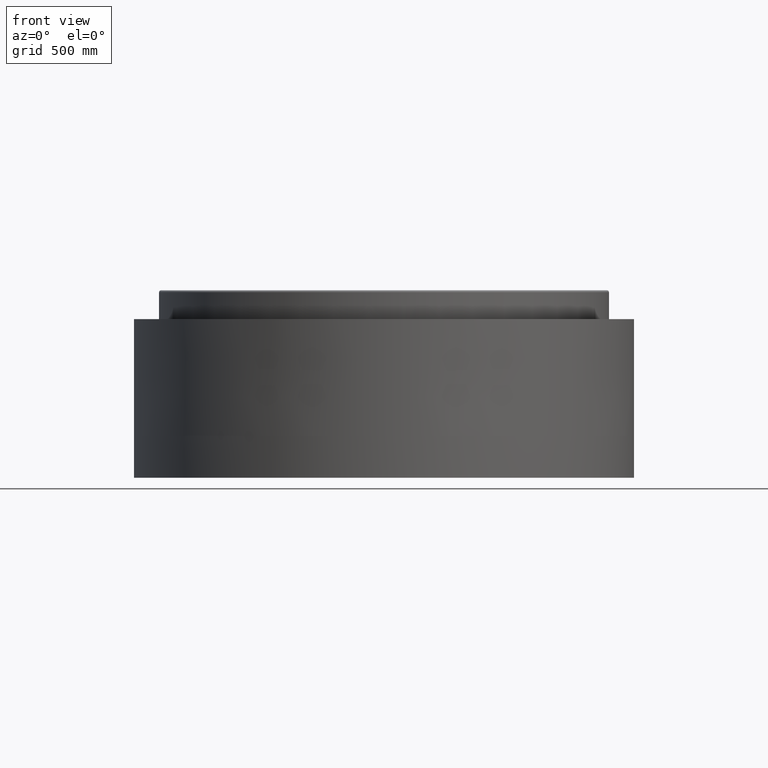
[diagram: clean part render]
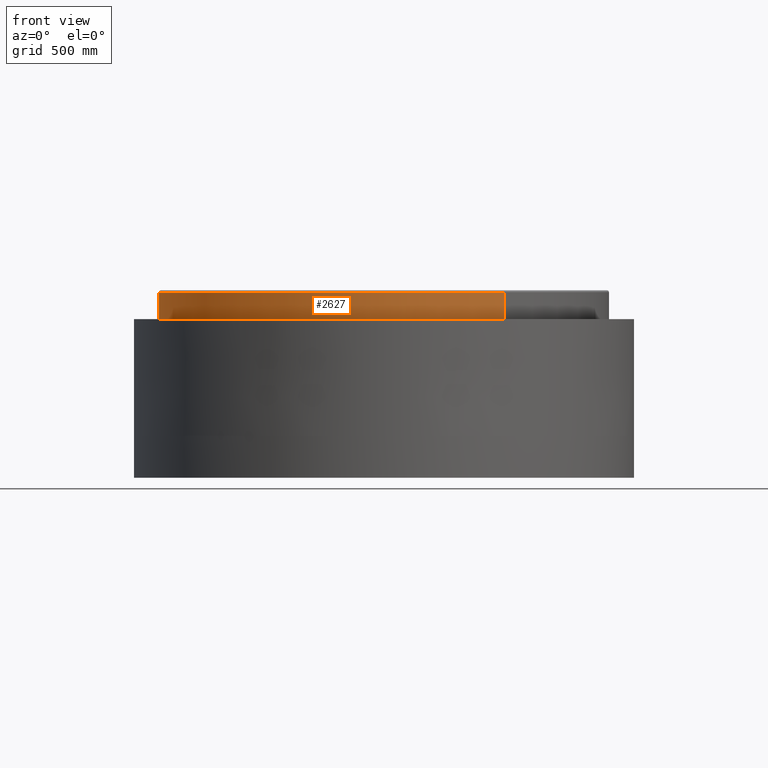
[diagram: same view with one face highlighted and labeled with its STEP entity id]
A machine part, front view. The second image highlights one B-rep face of the part: STEP entity #2627.
In plain terms, the highlighted cylindrical surface (partial cylindrical patch) has radius 1076 mm, axis along (-0, 0, -1).
Its self-contained STEP definition (entity closure, byte-faithful):
#609 = AXIS2_PLACEMENT_3D ( 'NONE', #11623, #6241, #1085 ) ;
#1085 = DIRECTION ( 'NONE',  ( -0.5325254243731409876, 0.8464140076795787504, 0.0000000000000000000 ) ) ;
#1161 = CARTESIAN_POINT ( 'NONE',  ( 572.9973566254999469, -910.7414722632267967, 557.0000000000000000 ) ) ;
#1335 = DIRECTION ( 'NONE',  ( -7.005467589146161716E-18, 3.518248062309025038E-17, -1.000000000000000000 ) ) ;
#1511 = FACE_OUTER_BOUND ( 'NONE', #13046, .T. ) ;
#2017 = CIRCLE ( 'NONE', #21024, 1076.000000000000227 ) ;
#2627 = ADVANCED_FACE ( 'NONE', ( #1511 ), #8350, .T. ) ;
#3336 = EDGE_CURVE ( 'NONE', #19158, #12610, #3903, .T. ) ;
#3580 = ORIENTED_EDGE ( 'NONE', *, *, #9729, .T. ) ;
#3728 = CARTESIAN_POINT ( 'NONE',  ( -572.9973566254998332, 910.7414722632269104, 557.0000000000000000 ) ) ;
#3787 = ORIENTED_EDGE ( 'NONE', *, *, #3336, .F. ) ;
#3903 = LINE ( 'NONE', #18054, #7356 ) ;
#4362 = CIRCLE ( 'NONE', #7930, 1076.000000000000227 ) ;
#5058 = CARTESIAN_POINT ( 'NONE',  ( 8.966998514107094886E-16, -4.503357519755555994E-15, 685.0000000000000000 ) ) ;
#5365 = DIRECTION ( 'NONE',  ( -7.005467589146161716E-18, 3.518248062309025038E-17, -1.000000000000000000 ) ) ;
#5583 = VECTOR ( 'NONE', #1335, 1000.000000000000000 ) ;
#6241 = DIRECTION ( 'NONE',  ( -7.005467589146161716E-18, 3.518248062309025038E-17, -1.000000000000000000 ) ) ;
#7356 = VECTOR ( 'NONE', #9402, 1000.000000000000000 ) ;
#7930 = AXIS2_PLACEMENT_3D ( 'NONE', #18965, #5365, #8616 ) ;
#8350 = CYLINDRICAL_SURFACE ( 'NONE', #609, 1076.000000000000227 ) ;
#8498 = EDGE_CURVE ( 'NONE', #19158, #16138, #2017, .T. ) ;
#8616 = DIRECTION ( 'NONE',  ( -0.5325254243731409876, 0.8464140076795787504, 0.0000000000000000000 ) ) ;
#9402 = DIRECTION ( 'NONE',  ( -7.005467589146161716E-18, 3.518248062309025038E-17, -1.000000000000000000 ) ) ;
#9507 = ORIENTED_EDGE ( 'NONE', *, *, #21439, .F. ) ;
#9729 = EDGE_CURVE ( 'NONE', #16138, #12415, #16723, .T. ) ;
#11623 = CARTESIAN_POINT ( 'NONE',  ( 4.053384292576740637E-31, -2.250246836384645568E-30, 557.0000000000000000 ) ) ;
#11801 = DIRECTION ( 'NONE',  ( -0.5325254243731409876, 0.8464140076795787504, 0.0000000000000000000 ) ) ;
#12415 = VERTEX_POINT ( 'NONE', #3728 ) ;
#12610 = VERTEX_POINT ( 'NONE', #1161 ) ;
#13046 = EDGE_LOOP ( 'NONE', ( #3787, #20000, #3580, #9507 ) ) ;
#13137 = CARTESIAN_POINT ( 'NONE',  ( -572.9973566254998332, 910.7414722632269104, 557.0000000000000000 ) ) ;
#14645 = CARTESIAN_POINT ( 'NONE',  ( -572.9973566254998332, 910.7414722632269104, 685.0000000000000000 ) ) ;
#16138 = VERTEX_POINT ( 'NONE', #14645 ) ;
#16723 = LINE ( 'NONE', #13137, #5583 ) ;
#17092 = DIRECTION ( 'NONE',  ( -7.005467589146161716E-18, 3.518248062309025038E-17, -1.000000000000000000 ) ) ;
#18054 = CARTESIAN_POINT ( 'NONE',  ( 572.9973566254999469, -910.7414722632267967, 557.0000000000000000 ) ) ;
#18569 = CARTESIAN_POINT ( 'NONE',  ( 572.9973566254999469, -910.7414722632267967, 685.0000000000000000 ) ) ;
#18965 = CARTESIAN_POINT ( 'NONE',  ( 4.053384292576740637E-31, -2.250246836384645568E-30, 557.0000000000000000 ) ) ;
#19158 = VERTEX_POINT ( 'NONE', #18569 ) ;
#20000 = ORIENTED_EDGE ( 'NONE', *, *, #8498, .T. ) ;
#21024 = AXIS2_PLACEMENT_3D ( 'NONE', #5058, #17092, #11801 ) ;
#21439 = EDGE_CURVE ( 'NONE', #12610, #12415, #4362, .T. ) ;